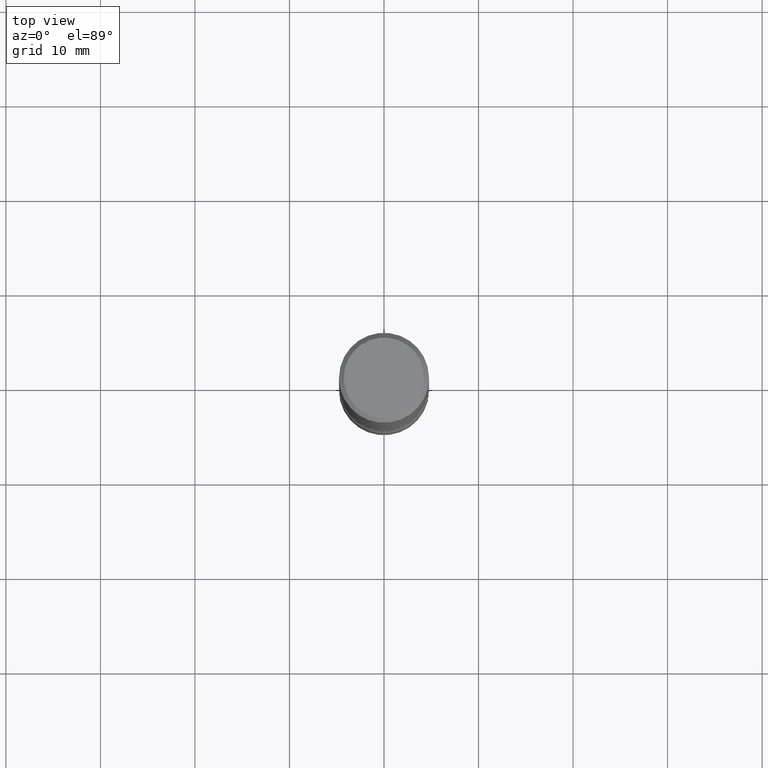
[diagram: clean part render]
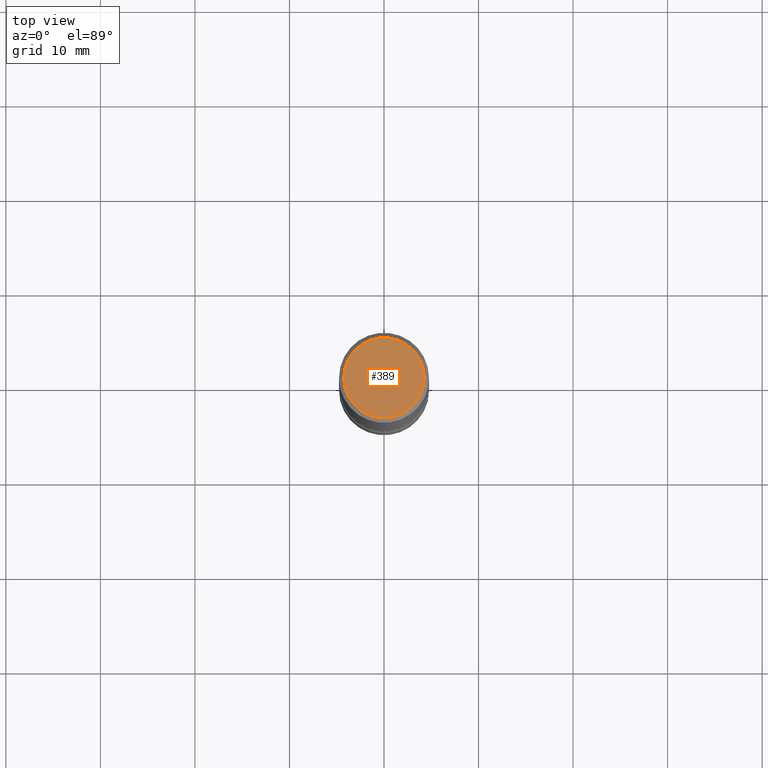
[diagram: same view with one face highlighted and labeled with its STEP entity id]
A machine part, top view. The second image highlights one B-rep face of the part: STEP entity #389.
In plain terms, the highlighted planar face has unit normal (0, -0, -1).
Its self-contained STEP definition (entity closure, byte-faithful):
#22 = CIRCLE ( 'NONE', #478, 0.1674999999999997602 ) ;
#47 = CIRCLE ( 'NONE', #779, 0.1674999999999997602 ) ;
#54 = EDGE_LOOP ( 'NONE', ( #276, #147 ) ) ;
#95 = PLANE ( 'NONE',  #355 ) ;
#122 = VERTEX_POINT ( 'NONE', #236 ) ;
#147 = ORIENTED_EDGE ( 'NONE', *, *, #590, .T. ) ;
#164 = CARTESIAN_POINT ( 'NONE',  ( -0.1674999999999997602, 1.204561061900879075E-15, 4.268512490092109750E-18 ) ) ;
#171 = DIRECTION ( 'NONE',  ( -2.445468806185136597E-29, 3.491481338843145583E-15, 1.000000000000000000 ) ) ;
#221 = DIRECTION ( 'NONE',  ( 2.438088387897960049E-29, -3.491481338843145188E-15, -1.000000000000000000 ) ) ;
#236 = CARTESIAN_POINT ( 'NONE',  ( 0.1674999999999997602, -1.252653207992876711E-15, 4.268512490108880748E-18 ) ) ;
#253 = CARTESIAN_POINT ( 'NONE',  ( -1.043851414335219820E-46, 1.490343170380447200E-32, 4.268512490100411279E-18 ) ) ;
#276 = ORIENTED_EDGE ( 'NONE', *, *, #782, .T. ) ;
#335 = CARTESIAN_POINT ( 'NONE',  ( 1.169646248512447820E-15, 0.1674999999999997602, -5.826888680111757675E-16 ) ) ;
#355 = AXIS2_PLACEMENT_3D ( 'NONE', #335, #221, #473 ) ;
#389 = ADVANCED_FACE ( 'NONE', ( #523 ), #95, .F. ) ;
#463 = VERTEX_POINT ( 'NONE', #164 ) ;
#473 = DIRECTION ( 'NONE',  ( -1.000000000000000000, 6.982962677686265922E-15, -4.876176775795935793E-29 ) ) ;
#478 = AXIS2_PLACEMENT_3D ( 'NONE', #253, #703, #500 ) ;
#500 = DIRECTION ( 'NONE',  ( 1.000000000000000000, -6.982962677686265922E-15, 4.875936752492899929E-29 ) ) ;
#523 = FACE_OUTER_BOUND ( 'NONE', #54, .T. ) ;
#590 = EDGE_CURVE ( 'NONE', #122, #463, #47, .T. ) ;
#703 = DIRECTION ( 'NONE',  ( -2.445468806185136597E-29, 3.491481338843145583E-15, 1.000000000000000000 ) ) ;
#732 = CARTESIAN_POINT ( 'NONE',  ( -1.043851414335219820E-46, 1.490343170380447200E-32, 4.268512490100411279E-18 ) ) ;
#743 = DIRECTION ( 'NONE',  ( 1.000000000000000000, -6.982962677686265922E-15, 4.875936752492899929E-29 ) ) ;
#779 = AXIS2_PLACEMENT_3D ( 'NONE', #732, #171, #743 ) ;
#782 = EDGE_CURVE ( 'NONE', #463, #122, #22, .T. ) ;